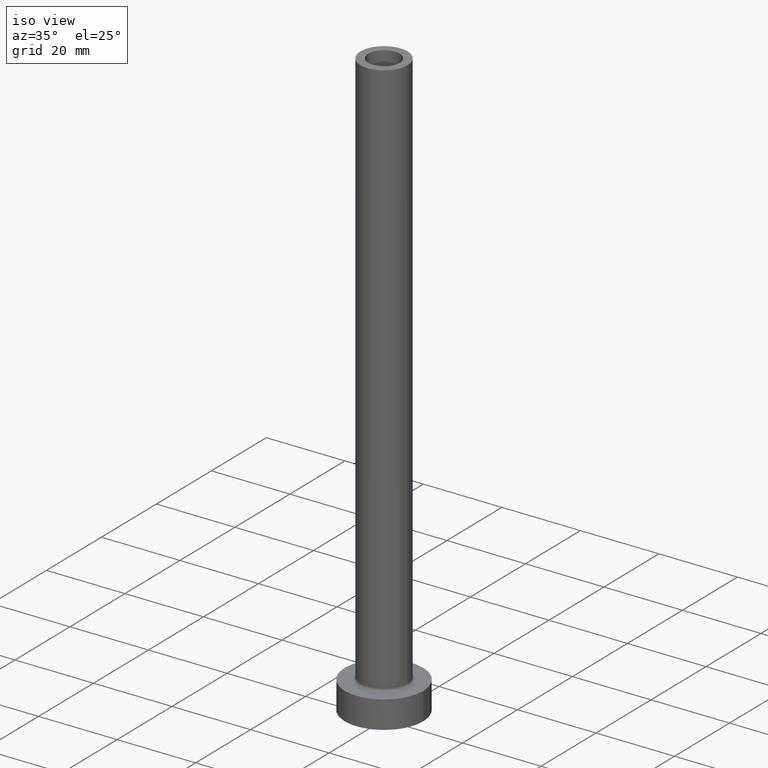
[diagram: clean part render]
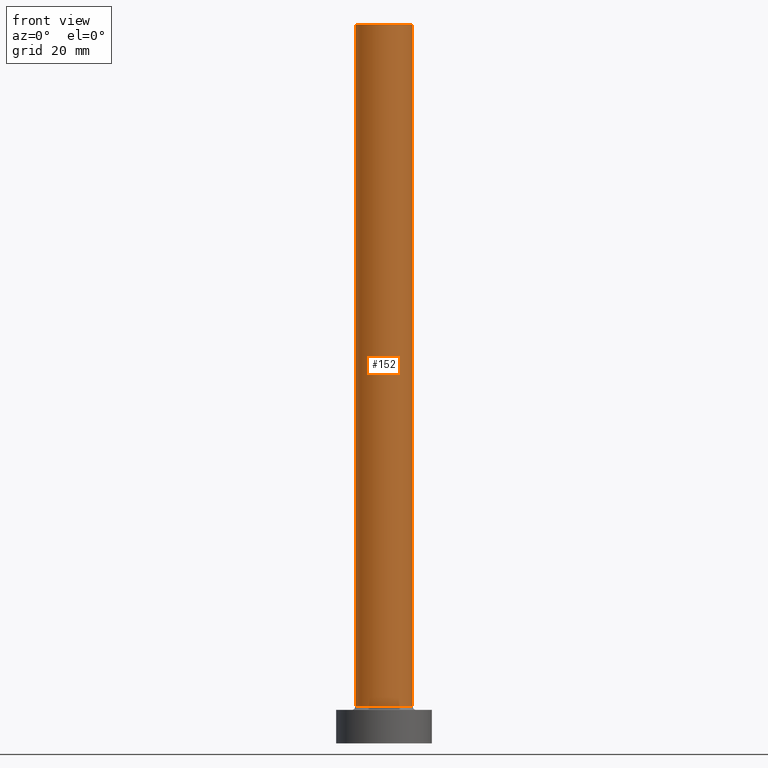
[diagram: tour spotlight — one face highlighted and labeled with its STEP entity id]
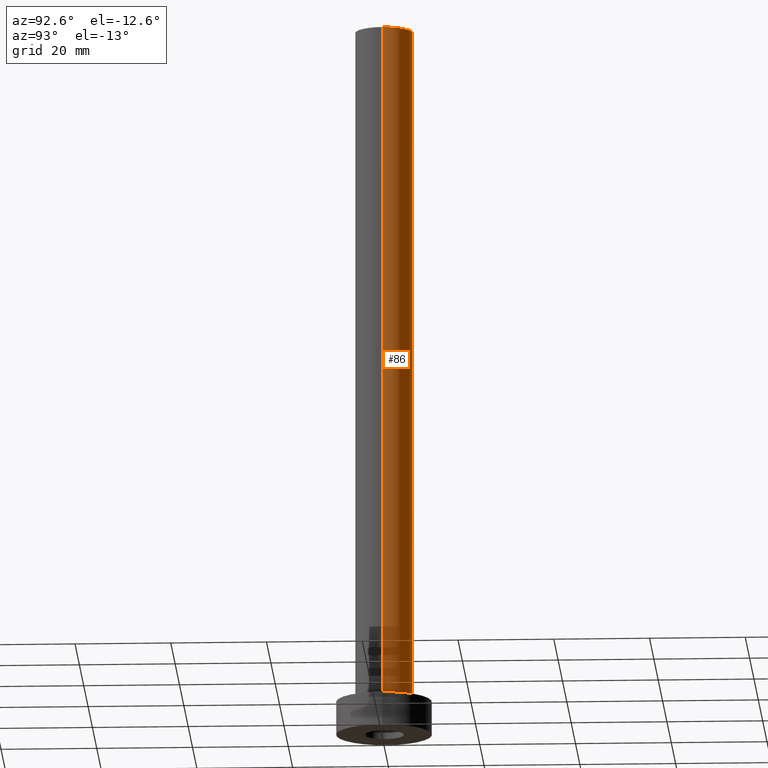
[diagram: tour spotlight — one face highlighted and labeled with its STEP entity id]
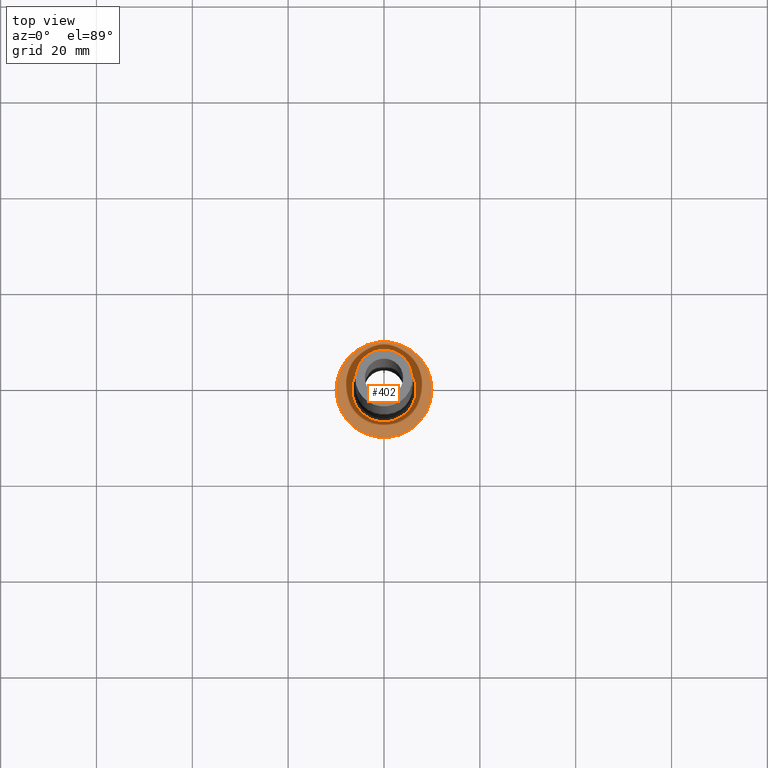
[diagram: tour spotlight — one face highlighted and labeled with its STEP entity id]
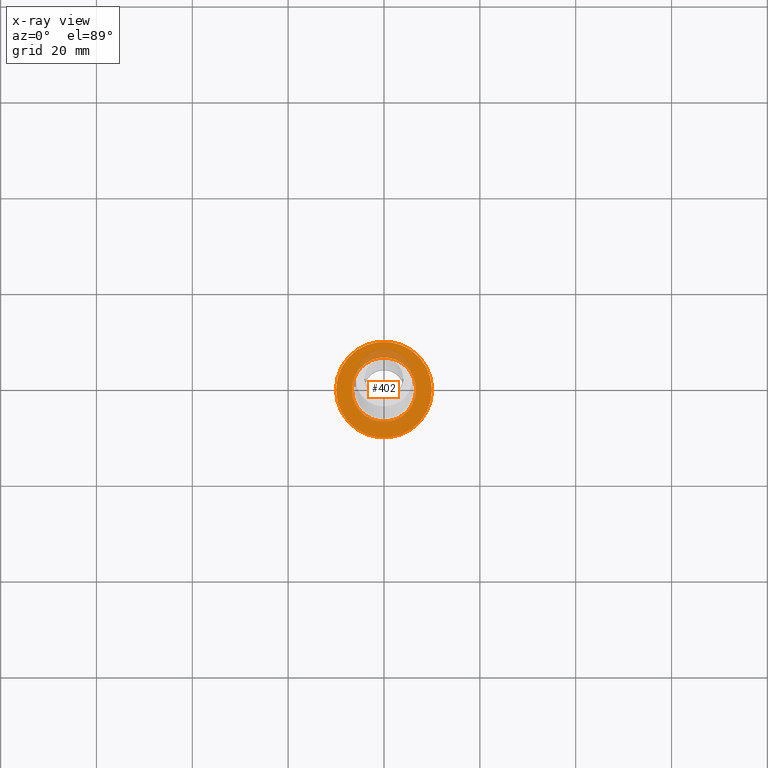
[diagram: x-ray of the same camera — body ghosted, this tour face saturated]
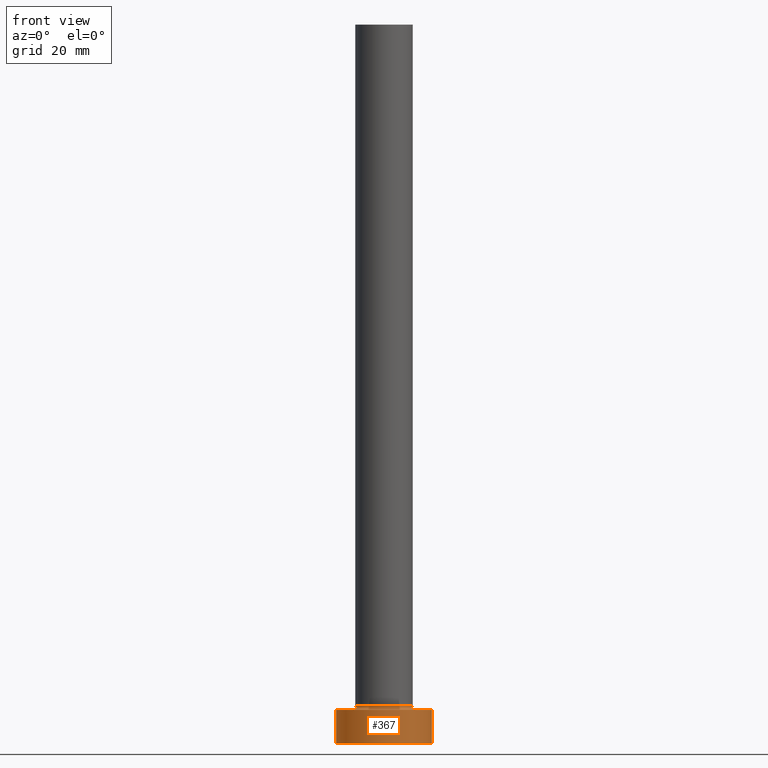
[diagram: tour spotlight — one face highlighted and labeled with its STEP entity id]
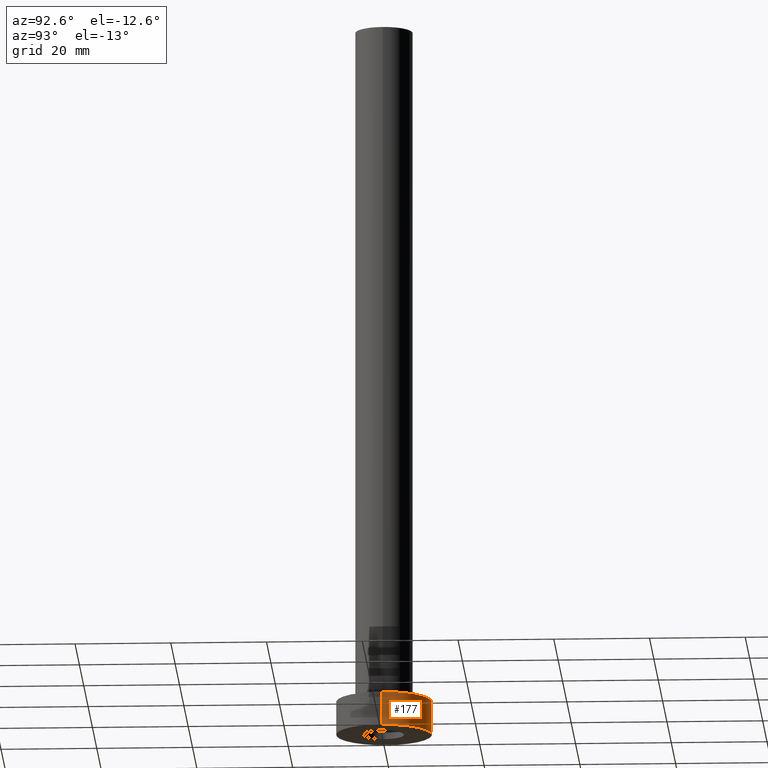
[diagram: tour spotlight — one face highlighted and labeled with its STEP entity id]
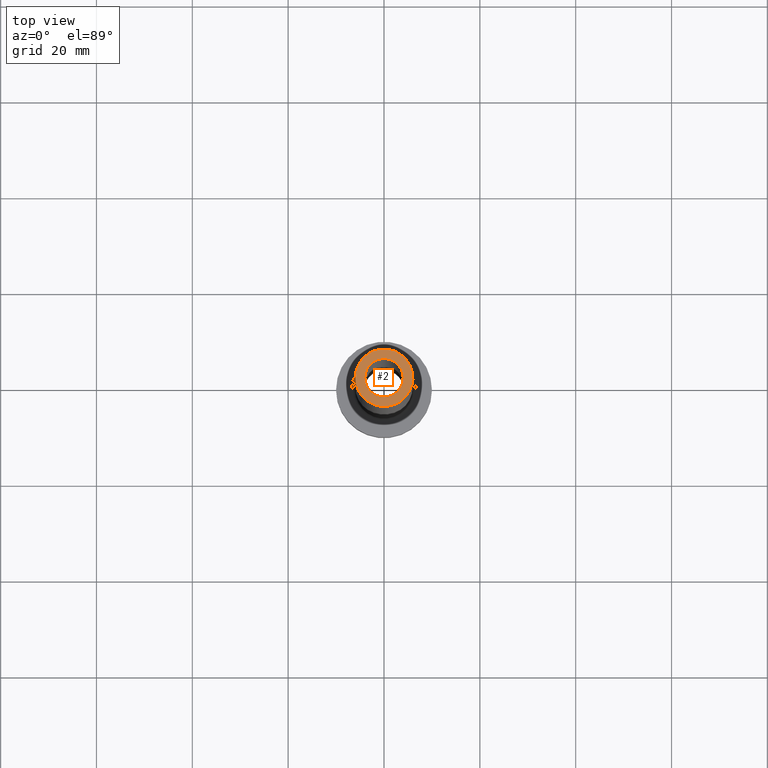
[diagram: tour spotlight — one face highlighted and labeled with its STEP entity id]
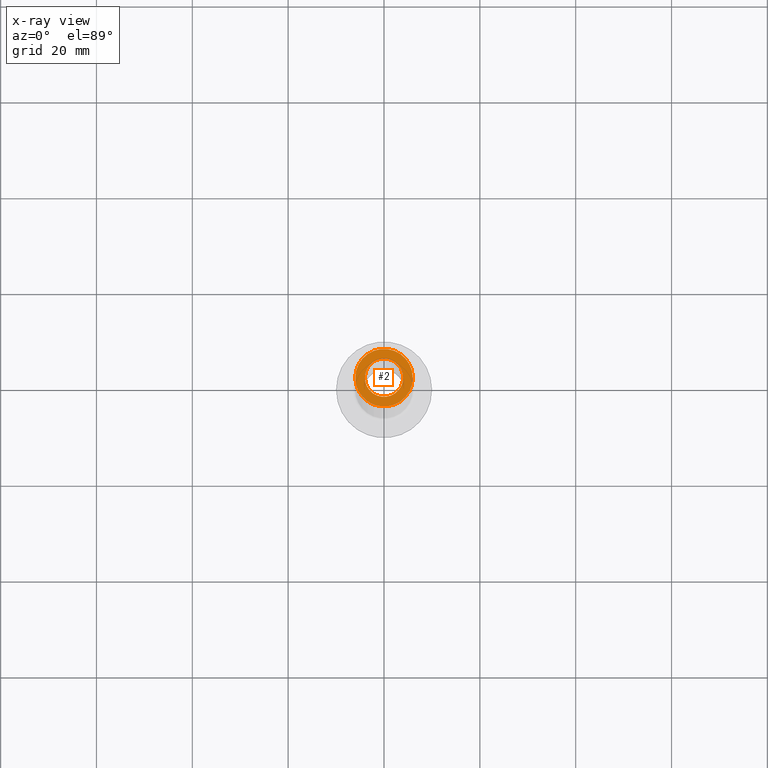
[diagram: x-ray of the same camera — body ghosted, this tour face saturated]
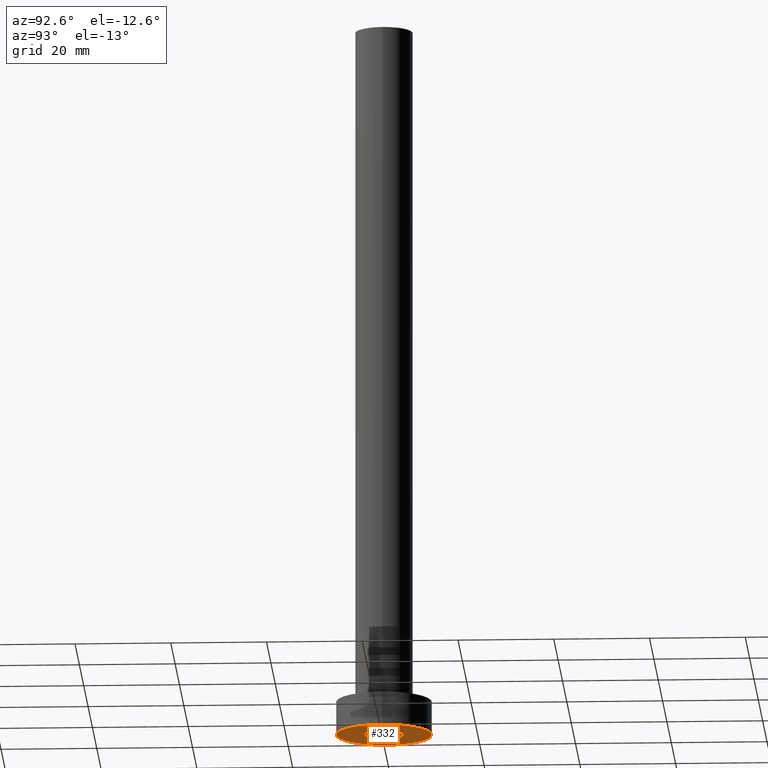
[diagram: tour spotlight — one face highlighted and labeled with its STEP entity id]
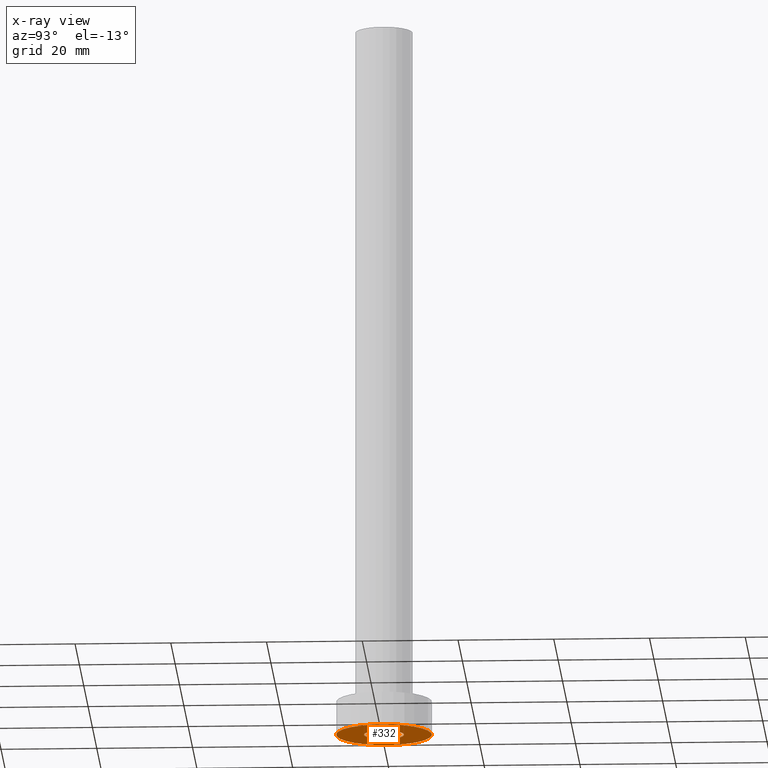
[diagram: x-ray of the same camera — body ghosted, this tour face saturated]
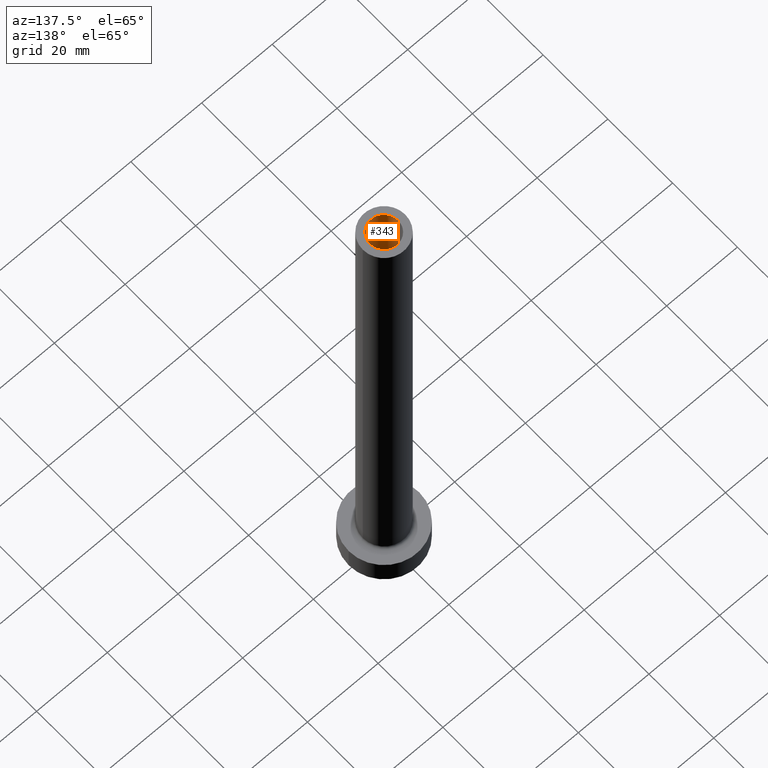
[diagram: tour spotlight — one face highlighted and labeled with its STEP entity id]
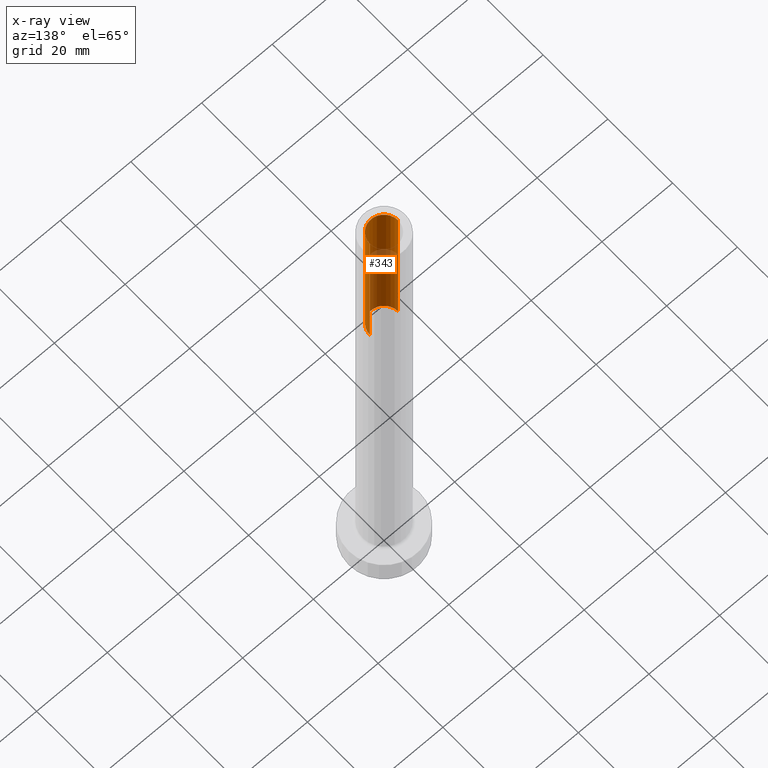
[diagram: x-ray of the same camera — body ghosted, this tour face saturated]
A machine part: a face-by-face anatomy tour. The part has 14 B-rep faces; the first image is the clean iso view, then the 8 largest visible faces are spotlighted one at a time (largest first), each with its STEP entity span.

Face 1 — front view, entity #152. In plain terms, the highlighted cylindrical surface (edge-blend (fillet) strip) has radius 6 mm, axis along (-0, -0, -1).
Definition (entity closure, byte-faithful):
#5 = DIRECTION ( 'NONE',  ( -0.000000000000000000, -0.000000000000000000, -1.000000000000000000 ) ) ;
#10 = EDGE_CURVE ( 'NONE', #386, #135, #185, .T. ) ;
#36 = AXIS2_PLACEMENT_3D ( 'NONE', #305, #99, #56 ) ;
#41 = AXIS2_PLACEMENT_3D ( 'NONE', #348, #201, #414 ) ;
#51 = CIRCLE ( 'NONE', #195, 6.000000000000000888 ) ;
#56 = DIRECTION ( 'NONE',  ( -1.000000000000000000, 0.000000000000000000, 0.000000000000000000 ) ) ;
#66 = DIRECTION ( 'NONE',  ( 0.000000000000000000, 0.000000000000000000, 1.000000000000000000 ) ) ;
#83 = VERTEX_POINT ( 'NONE', #149 ) ;
#96 = LINE ( 'NONE', #320, #293 ) ;
#99 = DIRECTION ( 'NONE',  ( -0.000000000000000000, -0.000000000000000000, -1.000000000000000000 ) ) ;
#100 = ORIENTED_EDGE ( 'NONE', *, *, #249, .T. ) ;
#102 = VERTEX_POINT ( 'NONE', #232 ) ;
#135 = VERTEX_POINT ( 'NONE', #193 ) ;
#149 = CARTESIAN_POINT ( 'NONE',  ( -6.000000000000000888, 0.000000000000000000, 150.0000000000000000 ) ) ;
#152 = ADVANCED_FACE ( 'NONE', ( #266 ), #159, .T. ) ;
#159 = CYLINDRICAL_SURFACE ( 'NONE', #36, 6.000000000000000888 ) ;
#170 = ORIENTED_EDGE ( 'NONE', *, *, #242, .F. ) ;
#171 = DIRECTION ( 'NONE',  ( -0.000000000000000000, -0.000000000000000000, -1.000000000000000000 ) ) ;
#181 = EDGE_LOOP ( 'NONE', ( #264, #170, #100, #458 ) ) ;
#185 = LINE ( 'NONE', #436, #281 ) ;
#193 = CARTESIAN_POINT ( 'NONE',  ( 6.000000000000000888, 7.347880794884120722E-16, 7.700000000000012612 ) ) ;
#195 = AXIS2_PLACEMENT_3D ( 'NONE', #387, #66, #380 ) ;
#201 = DIRECTION ( 'NONE',  ( 0.000000000000000000, 0.000000000000000000, 1.000000000000000000 ) ) ;
#232 = CARTESIAN_POINT ( 'NONE',  ( -6.000000000000000888, 0.000000000000000000, 7.700000000000012612 ) ) ;
#241 = EDGE_CURVE ( 'NONE', #102, #135, #51, .T. ) ;
#242 = EDGE_CURVE ( 'NONE', #83, #386, #318, .T. ) ;
#249 = EDGE_CURVE ( 'NONE', #83, #102, #96, .T. ) ;
#264 = ORIENTED_EDGE ( 'NONE', *, *, #10, .F. ) ;
#266 = FACE_OUTER_BOUND ( 'NONE', #181, .T. ) ;
#281 = VECTOR ( 'NONE', #5, 1000.000000000000000 ) ;
#293 = VECTOR ( 'NONE', #171, 1000.000000000000000 ) ;
#305 = CARTESIAN_POINT ( 'NONE',  ( 0.000000000000000000, 0.000000000000000000, 150.0000000000000000 ) ) ;
#318 = CIRCLE ( 'NONE', #41, 6.000000000000000888 ) ;
#320 = CARTESIAN_POINT ( 'NONE',  ( -6.000000000000000888, 0.000000000000000000, 150.0000000000000000 ) ) ;
#348 = CARTESIAN_POINT ( 'NONE',  ( 0.000000000000000000, 0.000000000000000000, 150.0000000000000000 ) ) ;
#361 = CARTESIAN_POINT ( 'NONE',  ( 6.000000000000000888, 7.347880794884120722E-16, 150.0000000000000000 ) ) ;
#380 = DIRECTION ( 'NONE',  ( 1.000000000000000000, 0.000000000000000000, 0.000000000000000000 ) ) ;
#386 = VERTEX_POINT ( 'NONE', #361 ) ;
#387 = CARTESIAN_POINT ( 'NONE',  ( 0.000000000000000000, 0.000000000000000000, 7.700000000000012612 ) ) ;
#414 = DIRECTION ( 'NONE',  ( 1.000000000000000000, 0.000000000000000000, 0.000000000000000000 ) ) ;
#436 = CARTESIAN_POINT ( 'NONE',  ( 6.000000000000000888, 7.347880794884120722E-16, 150.0000000000000000 ) ) ;
#458 = ORIENTED_EDGE ( 'NONE', *, *, #241, .T. ) ;

Face 2 — auxiliary view, entity #86. In plain terms, the highlighted cylindrical surface (edge-blend (fillet) strip) has radius 6 mm, axis along (-0, -0, -1).
Definition (entity closure, byte-faithful):
#1 = CARTESIAN_POINT ( 'NONE',  ( 0.000000000000000000, 0.000000000000000000, 150.0000000000000000 ) ) ;
#5 = DIRECTION ( 'NONE',  ( -0.000000000000000000, -0.000000000000000000, -1.000000000000000000 ) ) ;
#10 = EDGE_CURVE ( 'NONE', #386, #135, #185, .T. ) ;
#39 = DIRECTION ( 'NONE',  ( 1.000000000000000000, 0.000000000000000000, 0.000000000000000000 ) ) ;
#59 = DIRECTION ( 'NONE',  ( 1.000000000000000000, 0.000000000000000000, 0.000000000000000000 ) ) ;
#62 = CIRCLE ( 'NONE', #97, 6.000000000000000888 ) ;
#77 = DIRECTION ( 'NONE',  ( -0.000000000000000000, -0.000000000000000000, -1.000000000000000000 ) ) ;
#83 = VERTEX_POINT ( 'NONE', #149 ) ;
#86 = ADVANCED_FACE ( 'NONE', ( #221 ), #122, .T. ) ;
#88 = ORIENTED_EDGE ( 'NONE', *, *, #249, .F. ) ;
#91 = DIRECTION ( 'NONE',  ( 0.000000000000000000, 0.000000000000000000, 1.000000000000000000 ) ) ;
#96 = LINE ( 'NONE', #320, #293 ) ;
#97 = AXIS2_PLACEMENT_3D ( 'NONE', #411, #91, #59 ) ;
#102 = VERTEX_POINT ( 'NONE', #232 ) ;
#122 = CYLINDRICAL_SURFACE ( 'NONE', #392, 6.000000000000000888 ) ;
#135 = VERTEX_POINT ( 'NONE', #193 ) ;
#149 = CARTESIAN_POINT ( 'NONE',  ( -6.000000000000000888, 0.000000000000000000, 150.0000000000000000 ) ) ;
#171 = DIRECTION ( 'NONE',  ( -0.000000000000000000, -0.000000000000000000, -1.000000000000000000 ) ) ;
#185 = LINE ( 'NONE', #436, #281 ) ;
#193 = CARTESIAN_POINT ( 'NONE',  ( 6.000000000000000888, 7.347880794884120722E-16, 7.700000000000012612 ) ) ;
#199 = EDGE_LOOP ( 'NONE', ( #296, #412, #291, #88 ) ) ;
#213 = CIRCLE ( 'NONE', #460, 6.000000000000000888 ) ;
#221 = FACE_OUTER_BOUND ( 'NONE', #199, .T. ) ;
#232 = CARTESIAN_POINT ( 'NONE',  ( -6.000000000000000888, 0.000000000000000000, 7.700000000000012612 ) ) ;
#249 = EDGE_CURVE ( 'NONE', #83, #102, #96, .T. ) ;
#260 = EDGE_CURVE ( 'NONE', #135, #102, #62, .T. ) ;
#281 = VECTOR ( 'NONE', #5, 1000.000000000000000 ) ;
#291 = ORIENTED_EDGE ( 'NONE', *, *, #260, .T. ) ;
#293 = VECTOR ( 'NONE', #171, 1000.000000000000000 ) ;
#296 = ORIENTED_EDGE ( 'NONE', *, *, #461, .F. ) ;
#320 = CARTESIAN_POINT ( 'NONE',  ( -6.000000000000000888, 0.000000000000000000, 150.0000000000000000 ) ) ;
#334 = CARTESIAN_POINT ( 'NONE',  ( 0.000000000000000000, 0.000000000000000000, 150.0000000000000000 ) ) ;
#361 = CARTESIAN_POINT ( 'NONE',  ( 6.000000000000000888, 7.347880794884120722E-16, 150.0000000000000000 ) ) ;
#366 = DIRECTION ( 'NONE',  ( -1.000000000000000000, 0.000000000000000000, 0.000000000000000000 ) ) ;
#386 = VERTEX_POINT ( 'NONE', #361 ) ;
#392 = AXIS2_PLACEMENT_3D ( 'NONE', #334, #77, #366 ) ;
#411 = CARTESIAN_POINT ( 'NONE',  ( 0.000000000000000000, 0.000000000000000000, 7.700000000000012612 ) ) ;
#412 = ORIENTED_EDGE ( 'NONE', *, *, #10, .T. ) ;
#430 = DIRECTION ( 'NONE',  ( 0.000000000000000000, 0.000000000000000000, 1.000000000000000000 ) ) ;
#436 = CARTESIAN_POINT ( 'NONE',  ( 6.000000000000000888, 7.347880794884120722E-16, 150.0000000000000000 ) ) ;
#460 = AXIS2_PLACEMENT_3D ( 'NONE', #1, #430, #39 ) ;
#461 = EDGE_CURVE ( 'NONE', #386, #83, #213, .T. ) ;

Face 3 — top view, entity #402. An x-ray twin of the same camera follows (body ghosted, this face saturated) — the face is partly hidden behind the body. In plain terms, the highlighted planar face has unit normal (0, 0, 1).
Definition (entity closure, byte-faithful):
#11 = DIRECTION ( 'NONE',  ( 1.000000000000000000, 0.000000000000000000, 0.000000000000000000 ) ) ;
#14 = CIRCLE ( 'NONE', #263, 10.00000000000000000 ) ;
#17 = ORIENTED_EDGE ( 'NONE', *, *, #220, .T. ) ;
#24 = AXIS2_PLACEMENT_3D ( 'NONE', #395, #48, #262 ) ;
#31 = AXIS2_PLACEMENT_3D ( 'NONE', #187, #364, #113 ) ;
#46 = EDGE_LOOP ( 'NONE', ( #210, #80 ) ) ;
#48 = DIRECTION ( 'NONE',  ( 0.000000000000000000, 0.000000000000000000, 1.000000000000000000 ) ) ;
#49 = VERTEX_POINT ( 'NONE', #340 ) ;
#73 = DIRECTION ( 'NONE',  ( 0.000000000000000000, 0.000000000000000000, 1.000000000000000000 ) ) ;
#80 = ORIENTED_EDGE ( 'NONE', *, *, #106, .T. ) ;
#87 = CARTESIAN_POINT ( 'NONE',  ( -6.700000000000001066, 8.205133554287267548E-16, 7.000000000000006217 ) ) ;
#103 = EDGE_CURVE ( 'NONE', #345, #175, #328, .T. ) ;
#106 = EDGE_CURVE ( 'NONE', #175, #345, #447, .T. ) ;
#107 = FACE_OUTER_BOUND ( 'NONE', #437, .T. ) ;
#113 = DIRECTION ( 'NONE',  ( 1.000000000000000000, 0.000000000000000000, 0.000000000000000000 ) ) ;
#115 = EDGE_CURVE ( 'NONE', #374, #49, #398, .T. ) ;
#160 = DIRECTION ( 'NONE',  ( -0.000000000000000000, -0.000000000000000000, -1.000000000000000000 ) ) ;
#173 = DIRECTION ( 'NONE',  ( 1.000000000000000000, 0.000000000000000000, 0.000000000000000000 ) ) ;
#175 = VERTEX_POINT ( 'NONE', #87 ) ;
#180 = DIRECTION ( 'NONE',  ( 1.000000000000000000, 0.000000000000000000, -0.000000000000000000 ) ) ;
#187 = CARTESIAN_POINT ( 'NONE',  ( 0.000000000000000000, 0.000000000000000000, 7.000000000000000000 ) ) ;
#210 = ORIENTED_EDGE ( 'NONE', *, *, #103, .T. ) ;
#220 = EDGE_CURVE ( 'NONE', #49, #374, #14, .T. ) ;
#251 = CARTESIAN_POINT ( 'NONE',  ( 0.000000000000000000, 0.000000000000000000, 7.000000000000000000 ) ) ;
#254 = PLANE ( 'NONE',  #384 ) ;
#262 = DIRECTION ( 'NONE',  ( 1.000000000000000000, 0.000000000000000000, 0.000000000000000000 ) ) ;
#263 = AXIS2_PLACEMENT_3D ( 'NONE', #416, #446, #173 ) ;
#270 = ORIENTED_EDGE ( 'NONE', *, *, #115, .T. ) ;
#295 = CARTESIAN_POINT ( 'NONE',  ( 0.000000000000000000, 0.000000000000000000, 7.000000000000000000 ) ) ;
#321 = CARTESIAN_POINT ( 'NONE',  ( 6.700000000000001066, 0.000000000000000000, 7.000000000000006217 ) ) ;
#328 = CIRCLE ( 'NONE', #381, 6.700000000000001066 ) ;
#340 = CARTESIAN_POINT ( 'NONE',  ( -10.00000000000000000, 0.000000000000000000, 7.000000000000000000 ) ) ;
#345 = VERTEX_POINT ( 'NONE', #321 ) ;
#364 = DIRECTION ( 'NONE',  ( -0.000000000000000000, -0.000000000000000000, -1.000000000000000000 ) ) ;
#374 = VERTEX_POINT ( 'NONE', #391 ) ;
#381 = AXIS2_PLACEMENT_3D ( 'NONE', #295, #160, #11 ) ;
#384 = AXIS2_PLACEMENT_3D ( 'NONE', #251, #73, #180 ) ;
#391 = CARTESIAN_POINT ( 'NONE',  ( 10.00000000000000000, 1.224646799147353256E-15, 7.000000000000000000 ) ) ;
#395 = CARTESIAN_POINT ( 'NONE',  ( 0.000000000000000000, 0.000000000000000000, 7.000000000000000000 ) ) ;
#398 = CIRCLE ( 'NONE', #24, 10.00000000000000000 ) ;
#402 = ADVANCED_FACE ( 'NONE', ( #423, #107 ), #254, .T. ) ;
#416 = CARTESIAN_POINT ( 'NONE',  ( 0.000000000000000000, 0.000000000000000000, 7.000000000000000000 ) ) ;
#423 = FACE_BOUND ( 'NONE', #46, .T. ) ;
#437 = EDGE_LOOP ( 'NONE', ( #17, #270 ) ) ;
#446 = DIRECTION ( 'NONE',  ( 0.000000000000000000, 0.000000000000000000, 1.000000000000000000 ) ) ;
#447 = CIRCLE ( 'NONE', #31, 6.700000000000001066 ) ;

Face 4 — front view, entity #367. In plain terms, the highlighted cylindrical surface (partial cylindrical patch) has radius 10 mm, axis along (-0, -0, -1).
Definition (entity closure, byte-faithful):
#8 = CARTESIAN_POINT ( 'NONE',  ( -10.00000000000000000, 0.000000000000000000, 0.000000000000000000 ) ) ;
#12 = VERTEX_POINT ( 'NONE', #16 ) ;
#14 = CIRCLE ( 'NONE', #263, 10.00000000000000000 ) ;
#16 = CARTESIAN_POINT ( 'NONE',  ( 10.00000000000000000, 1.224646799147353256E-15, 0.000000000000000000 ) ) ;
#21 = LINE ( 'NONE', #131, #148 ) ;
#26 = EDGE_CURVE ( 'NONE', #374, #12, #75, .T. ) ;
#40 = VERTEX_POINT ( 'NONE', #8 ) ;
#49 = VERTEX_POINT ( 'NONE', #340 ) ;
#64 = DIRECTION ( 'NONE',  ( -0.000000000000000000, -0.000000000000000000, -1.000000000000000000 ) ) ;
#75 = LINE ( 'NONE', #228, #365 ) ;
#82 = EDGE_LOOP ( 'NONE', ( #108, #154, #410, #202 ) ) ;
#104 = DIRECTION ( 'NONE',  ( -1.000000000000000000, 0.000000000000000000, 0.000000000000000000 ) ) ;
#108 = ORIENTED_EDGE ( 'NONE', *, *, #26, .F. ) ;
#131 = CARTESIAN_POINT ( 'NONE',  ( -10.00000000000000000, 0.000000000000000000, 7.000000000000000000 ) ) ;
#140 = DIRECTION ( 'NONE',  ( -0.000000000000000000, -0.000000000000000000, -1.000000000000000000 ) ) ;
#142 = EDGE_CURVE ( 'NONE', #40, #12, #207, .T. ) ;
#148 = VECTOR ( 'NONE', #64, 1000.000000000000000 ) ;
#154 = ORIENTED_EDGE ( 'NONE', *, *, #220, .F. ) ;
#173 = DIRECTION ( 'NONE',  ( 1.000000000000000000, 0.000000000000000000, 0.000000000000000000 ) ) ;
#184 = CARTESIAN_POINT ( 'NONE',  ( 0.000000000000000000, 0.000000000000000000, 7.000000000000000000 ) ) ;
#202 = ORIENTED_EDGE ( 'NONE', *, *, #142, .T. ) ;
#207 = CIRCLE ( 'NONE', #459, 10.00000000000000000 ) ;
#220 = EDGE_CURVE ( 'NONE', #49, #374, #14, .T. ) ;
#225 = CARTESIAN_POINT ( 'NONE',  ( 0.000000000000000000, 0.000000000000000000, 0.000000000000000000 ) ) ;
#228 = CARTESIAN_POINT ( 'NONE',  ( 10.00000000000000000, 1.224646799147353256E-15, 7.000000000000000000 ) ) ;
#247 = AXIS2_PLACEMENT_3D ( 'NONE', #184, #140, #104 ) ;
#263 = AXIS2_PLACEMENT_3D ( 'NONE', #416, #446, #173 ) ;
#289 = FACE_OUTER_BOUND ( 'NONE', #82, .T. ) ;
#307 = DIRECTION ( 'NONE',  ( 0.000000000000000000, 0.000000000000000000, 1.000000000000000000 ) ) ;
#323 = EDGE_CURVE ( 'NONE', #49, #40, #21, .T. ) ;
#340 = CARTESIAN_POINT ( 'NONE',  ( -10.00000000000000000, 0.000000000000000000, 7.000000000000000000 ) ) ;
#365 = VECTOR ( 'NONE', #394, 1000.000000000000000 ) ;
#367 = ADVANCED_FACE ( 'NONE', ( #289 ), #388, .T. ) ;
#369 = DIRECTION ( 'NONE',  ( 1.000000000000000000, 0.000000000000000000, 0.000000000000000000 ) ) ;
#374 = VERTEX_POINT ( 'NONE', #391 ) ;
#388 = CYLINDRICAL_SURFACE ( 'NONE', #247, 10.00000000000000000 ) ;
#391 = CARTESIAN_POINT ( 'NONE',  ( 10.00000000000000000, 1.224646799147353256E-15, 7.000000000000000000 ) ) ;
#394 = DIRECTION ( 'NONE',  ( -0.000000000000000000, -0.000000000000000000, -1.000000000000000000 ) ) ;
#410 = ORIENTED_EDGE ( 'NONE', *, *, #323, .T. ) ;
#416 = CARTESIAN_POINT ( 'NONE',  ( 0.000000000000000000, 0.000000000000000000, 7.000000000000000000 ) ) ;
#446 = DIRECTION ( 'NONE',  ( 0.000000000000000000, 0.000000000000000000, 1.000000000000000000 ) ) ;
#459 = AXIS2_PLACEMENT_3D ( 'NONE', #225, #307, #369 ) ;

Face 5 — auxiliary view, entity #177. In plain terms, the highlighted cylindrical surface (partial cylindrical patch) has radius 10 mm, axis along (-0, -0, -1).
Definition (entity closure, byte-faithful):
#8 = CARTESIAN_POINT ( 'NONE',  ( -10.00000000000000000, 0.000000000000000000, 0.000000000000000000 ) ) ;
#12 = VERTEX_POINT ( 'NONE', #16 ) ;
#16 = CARTESIAN_POINT ( 'NONE',  ( 10.00000000000000000, 1.224646799147353256E-15, 0.000000000000000000 ) ) ;
#21 = LINE ( 'NONE', #131, #148 ) ;
#24 = AXIS2_PLACEMENT_3D ( 'NONE', #395, #48, #262 ) ;
#26 = EDGE_CURVE ( 'NONE', #374, #12, #75, .T. ) ;
#40 = VERTEX_POINT ( 'NONE', #8 ) ;
#48 = DIRECTION ( 'NONE',  ( 0.000000000000000000, 0.000000000000000000, 1.000000000000000000 ) ) ;
#49 = VERTEX_POINT ( 'NONE', #340 ) ;
#64 = DIRECTION ( 'NONE',  ( -0.000000000000000000, -0.000000000000000000, -1.000000000000000000 ) ) ;
#75 = LINE ( 'NONE', #228, #365 ) ;
#90 = EDGE_CURVE ( 'NONE', #12, #40, #350, .T. ) ;
#94 = DIRECTION ( 'NONE',  ( -0.000000000000000000, -0.000000000000000000, -1.000000000000000000 ) ) ;
#115 = EDGE_CURVE ( 'NONE', #374, #49, #398, .T. ) ;
#117 = EDGE_LOOP ( 'NONE', ( #223, #139, #267, #156 ) ) ;
#129 = AXIS2_PLACEMENT_3D ( 'NONE', #250, #94, #283 ) ;
#131 = CARTESIAN_POINT ( 'NONE',  ( -10.00000000000000000, 0.000000000000000000, 7.000000000000000000 ) ) ;
#137 = FACE_OUTER_BOUND ( 'NONE', #117, .T. ) ;
#139 = ORIENTED_EDGE ( 'NONE', *, *, #26, .T. ) ;
#148 = VECTOR ( 'NONE', #64, 1000.000000000000000 ) ;
#156 = ORIENTED_EDGE ( 'NONE', *, *, #323, .F. ) ;
#157 = AXIS2_PLACEMENT_3D ( 'NONE', #330, #372, #269 ) ;
#177 = ADVANCED_FACE ( 'NONE', ( #137 ), #450, .T. ) ;
#223 = ORIENTED_EDGE ( 'NONE', *, *, #115, .F. ) ;
#228 = CARTESIAN_POINT ( 'NONE',  ( 10.00000000000000000, 1.224646799147353256E-15, 7.000000000000000000 ) ) ;
#250 = CARTESIAN_POINT ( 'NONE',  ( 0.000000000000000000, 0.000000000000000000, 7.000000000000000000 ) ) ;
#262 = DIRECTION ( 'NONE',  ( 1.000000000000000000, 0.000000000000000000, 0.000000000000000000 ) ) ;
#267 = ORIENTED_EDGE ( 'NONE', *, *, #90, .T. ) ;
#269 = DIRECTION ( 'NONE',  ( 1.000000000000000000, 0.000000000000000000, 0.000000000000000000 ) ) ;
#283 = DIRECTION ( 'NONE',  ( -1.000000000000000000, 0.000000000000000000, 0.000000000000000000 ) ) ;
#323 = EDGE_CURVE ( 'NONE', #49, #40, #21, .T. ) ;
#330 = CARTESIAN_POINT ( 'NONE',  ( 0.000000000000000000, 0.000000000000000000, 0.000000000000000000 ) ) ;
#340 = CARTESIAN_POINT ( 'NONE',  ( -10.00000000000000000, 0.000000000000000000, 7.000000000000000000 ) ) ;
#350 = CIRCLE ( 'NONE', #157, 10.00000000000000000 ) ;
#365 = VECTOR ( 'NONE', #394, 1000.000000000000000 ) ;
#372 = DIRECTION ( 'NONE',  ( 0.000000000000000000, 0.000000000000000000, 1.000000000000000000 ) ) ;
#374 = VERTEX_POINT ( 'NONE', #391 ) ;
#391 = CARTESIAN_POINT ( 'NONE',  ( 10.00000000000000000, 1.224646799147353256E-15, 7.000000000000000000 ) ) ;
#394 = DIRECTION ( 'NONE',  ( -0.000000000000000000, -0.000000000000000000, -1.000000000000000000 ) ) ;
#395 = CARTESIAN_POINT ( 'NONE',  ( 0.000000000000000000, 0.000000000000000000, 7.000000000000000000 ) ) ;
#398 = CIRCLE ( 'NONE', #24, 10.00000000000000000 ) ;
#450 = CYLINDRICAL_SURFACE ( 'NONE', #129, 10.00000000000000000 ) ;

Face 6 — top view, entity #2. An x-ray twin of the same camera follows (body ghosted, this face saturated) — the face is partly hidden behind the body. In plain terms, the highlighted planar face has unit normal (0, 0, 1).
Definition (entity closure, byte-faithful):
#1 = CARTESIAN_POINT ( 'NONE',  ( 0.000000000000000000, 0.000000000000000000, 150.0000000000000000 ) ) ;
#2 = ADVANCED_FACE ( 'NONE', ( #198, #190 ), #298, .T. ) ;
#22 = ORIENTED_EDGE ( 'NONE', *, *, #242, .T. ) ;
#25 = ORIENTED_EDGE ( 'NONE', *, *, #277, .F. ) ;
#28 = ORIENTED_EDGE ( 'NONE', *, *, #300, .F. ) ;
#39 = DIRECTION ( 'NONE',  ( 1.000000000000000000, 0.000000000000000000, 0.000000000000000000 ) ) ;
#41 = AXIS2_PLACEMENT_3D ( 'NONE', #348, #201, #414 ) ;
#69 = CIRCLE ( 'NONE', #165, 4.000000000000000000 ) ;
#74 = DIRECTION ( 'NONE',  ( 0.000000000000000000, 0.000000000000000000, 1.000000000000000000 ) ) ;
#78 = EDGE_LOOP ( 'NONE', ( #22, #401 ) ) ;
#83 = VERTEX_POINT ( 'NONE', #149 ) ;
#85 = CIRCLE ( 'NONE', #274, 4.000000000000000000 ) ;
#119 = DIRECTION ( 'NONE',  ( 1.000000000000000000, 0.000000000000000000, -0.000000000000000000 ) ) ;
#126 = EDGE_LOOP ( 'NONE', ( #28, #25 ) ) ;
#146 = CARTESIAN_POINT ( 'NONE',  ( 4.000000000000000000, 4.898587196589411843E-16, 150.0000000000000000 ) ) ;
#149 = CARTESIAN_POINT ( 'NONE',  ( -6.000000000000000888, 0.000000000000000000, 150.0000000000000000 ) ) ;
#165 = AXIS2_PLACEMENT_3D ( 'NONE', #237, #378, #312 ) ;
#172 = AXIS2_PLACEMENT_3D ( 'NONE', #399, #74, #119 ) ;
#190 = FACE_OUTER_BOUND ( 'NONE', #78, .T. ) ;
#198 = FACE_BOUND ( 'NONE', #126, .T. ) ;
#201 = DIRECTION ( 'NONE',  ( 0.000000000000000000, 0.000000000000000000, 1.000000000000000000 ) ) ;
#213 = CIRCLE ( 'NONE', #460, 6.000000000000000888 ) ;
#218 = CARTESIAN_POINT ( 'NONE',  ( -4.000000000000000000, 0.000000000000000000, 150.0000000000000000 ) ) ;
#237 = CARTESIAN_POINT ( 'NONE',  ( 0.000000000000000000, 0.000000000000000000, 150.0000000000000000 ) ) ;
#242 = EDGE_CURVE ( 'NONE', #83, #386, #318, .T. ) ;
#244 = DIRECTION ( 'NONE',  ( 1.000000000000000000, 0.000000000000000000, 0.000000000000000000 ) ) ;
#274 = AXIS2_PLACEMENT_3D ( 'NONE', #454, #351, #244 ) ;
#277 = EDGE_CURVE ( 'NONE', #355, #405, #85, .T. ) ;
#298 = PLANE ( 'NONE',  #172 ) ;
#300 = EDGE_CURVE ( 'NONE', #405, #355, #69, .T. ) ;
#312 = DIRECTION ( 'NONE',  ( 1.000000000000000000, 0.000000000000000000, 0.000000000000000000 ) ) ;
#318 = CIRCLE ( 'NONE', #41, 6.000000000000000888 ) ;
#348 = CARTESIAN_POINT ( 'NONE',  ( 0.000000000000000000, 0.000000000000000000, 150.0000000000000000 ) ) ;
#351 = DIRECTION ( 'NONE',  ( 0.000000000000000000, 0.000000000000000000, 1.000000000000000000 ) ) ;
#355 = VERTEX_POINT ( 'NONE', #146 ) ;
#361 = CARTESIAN_POINT ( 'NONE',  ( 6.000000000000000888, 7.347880794884120722E-16, 150.0000000000000000 ) ) ;
#378 = DIRECTION ( 'NONE',  ( 0.000000000000000000, 0.000000000000000000, 1.000000000000000000 ) ) ;
#386 = VERTEX_POINT ( 'NONE', #361 ) ;
#399 = CARTESIAN_POINT ( 'NONE',  ( 0.000000000000000000, 0.000000000000000000, 150.0000000000000000 ) ) ;
#401 = ORIENTED_EDGE ( 'NONE', *, *, #461, .T. ) ;
#405 = VERTEX_POINT ( 'NONE', #218 ) ;
#414 = DIRECTION ( 'NONE',  ( 1.000000000000000000, 0.000000000000000000, 0.000000000000000000 ) ) ;
#430 = DIRECTION ( 'NONE',  ( 0.000000000000000000, 0.000000000000000000, 1.000000000000000000 ) ) ;
#454 = CARTESIAN_POINT ( 'NONE',  ( 0.000000000000000000, 0.000000000000000000, 150.0000000000000000 ) ) ;
#460 = AXIS2_PLACEMENT_3D ( 'NONE', #1, #430, #39 ) ;
#461 = EDGE_CURVE ( 'NONE', #386, #83, #213, .T. ) ;

Face 7 — auxiliary view, entity #332. An x-ray twin of the same camera follows (body ghosted, this face saturated) — the face is partly hidden behind the body. In plain terms, the highlighted planar face has unit normal (0, 0, 1).
Definition (entity closure, byte-faithful):
#8 = CARTESIAN_POINT ( 'NONE',  ( -10.00000000000000000, 0.000000000000000000, 0.000000000000000000 ) ) ;
#12 = VERTEX_POINT ( 'NONE', #16 ) ;
#16 = CARTESIAN_POINT ( 'NONE',  ( 10.00000000000000000, 1.224646799147353256E-15, 0.000000000000000000 ) ) ;
#23 = DIRECTION ( 'NONE',  ( 1.000000000000000000, 0.000000000000000000, -0.000000000000000000 ) ) ;
#27 = FACE_BOUND ( 'NONE', #54, .T. ) ;
#29 = CARTESIAN_POINT ( 'NONE',  ( 4.150000000000000355, 5.082284216461515156E-16, 0.000000000000000000 ) ) ;
#37 = CIRCLE ( 'NONE', #174, 4.150000000000000355 ) ;
#40 = VERTEX_POINT ( 'NONE', #8 ) ;
#54 = EDGE_LOOP ( 'NONE', ( #442, #60 ) ) ;
#60 = ORIENTED_EDGE ( 'NONE', *, *, #435, .F. ) ;
#90 = EDGE_CURVE ( 'NONE', #12, #40, #350, .T. ) ;
#142 = EDGE_CURVE ( 'NONE', #40, #12, #207, .T. ) ;
#144 = DIRECTION ( 'NONE',  ( -0.000000000000000000, -0.000000000000000000, -1.000000000000000000 ) ) ;
#145 = DIRECTION ( 'NONE',  ( -0.000000000000000000, -0.000000000000000000, -1.000000000000000000 ) ) ;
#150 = ORIENTED_EDGE ( 'NONE', *, *, #142, .F. ) ;
#157 = AXIS2_PLACEMENT_3D ( 'NONE', #330, #372, #269 ) ;
#174 = AXIS2_PLACEMENT_3D ( 'NONE', #178, #144, #421 ) ;
#176 = DIRECTION ( 'NONE',  ( 1.000000000000000000, 0.000000000000000000, 0.000000000000000000 ) ) ;
#178 = CARTESIAN_POINT ( 'NONE',  ( 0.000000000000000000, 0.000000000000000000, 0.000000000000000000 ) ) ;
#183 = CARTESIAN_POINT ( 'NONE',  ( 0.000000000000000000, 0.000000000000000000, 0.000000000000000000 ) ) ;
#204 = DIRECTION ( 'NONE',  ( 0.000000000000000000, 0.000000000000000000, 1.000000000000000000 ) ) ;
#207 = CIRCLE ( 'NONE', #459, 10.00000000000000000 ) ;
#211 = CARTESIAN_POINT ( 'NONE',  ( -4.150000000000000355, 0.000000000000000000, 0.000000000000000000 ) ) ;
#225 = CARTESIAN_POINT ( 'NONE',  ( 0.000000000000000000, 0.000000000000000000, 0.000000000000000000 ) ) ;
#226 = VERTEX_POINT ( 'NONE', #211 ) ;
#229 = VERTEX_POINT ( 'NONE', #29 ) ;
#234 = AXIS2_PLACEMENT_3D ( 'NONE', #183, #145, #176 ) ;
#238 = EDGE_LOOP ( 'NONE', ( #150, #329 ) ) ;
#240 = PLANE ( 'NONE',  #255 ) ;
#255 = AXIS2_PLACEMENT_3D ( 'NONE', #314, #204, #23 ) ;
#269 = DIRECTION ( 'NONE',  ( 1.000000000000000000, 0.000000000000000000, 0.000000000000000000 ) ) ;
#276 = FACE_OUTER_BOUND ( 'NONE', #238, .T. ) ;
#304 = CIRCLE ( 'NONE', #234, 4.150000000000000355 ) ;
#307 = DIRECTION ( 'NONE',  ( 0.000000000000000000, 0.000000000000000000, 1.000000000000000000 ) ) ;
#314 = CARTESIAN_POINT ( 'NONE',  ( 0.000000000000000000, 0.000000000000000000, 0.000000000000000000 ) ) ;
#329 = ORIENTED_EDGE ( 'NONE', *, *, #90, .F. ) ;
#330 = CARTESIAN_POINT ( 'NONE',  ( 0.000000000000000000, 0.000000000000000000, 0.000000000000000000 ) ) ;
#332 = ADVANCED_FACE ( 'NONE', ( #27, #276 ), #240, .F. ) ;
#350 = CIRCLE ( 'NONE', #157, 10.00000000000000000 ) ;
#369 = DIRECTION ( 'NONE',  ( 1.000000000000000000, 0.000000000000000000, 0.000000000000000000 ) ) ;
#372 = DIRECTION ( 'NONE',  ( 0.000000000000000000, 0.000000000000000000, 1.000000000000000000 ) ) ;
#421 = DIRECTION ( 'NONE',  ( 1.000000000000000000, 0.000000000000000000, 0.000000000000000000 ) ) ;
#422 = EDGE_CURVE ( 'NONE', #226, #229, #37, .T. ) ;
#435 = EDGE_CURVE ( 'NONE', #229, #226, #304, .T. ) ;
#442 = ORIENTED_EDGE ( 'NONE', *, *, #422, .F. ) ;
#459 = AXIS2_PLACEMENT_3D ( 'NONE', #225, #307, #369 ) ;

Face 8 — auxiliary view, entity #343. An x-ray twin of the same camera follows (body ghosted, this face saturated) — the face is partly hidden behind the body. In plain terms, the highlighted cylindrical surface (edge-blend (fillet) strip) has radius 4 mm, axis along (0, 0, -1).
Definition (entity closure, byte-faithful):
#34 = DIRECTION ( 'NONE',  ( 0.000000000000000000, 0.000000000000000000, -1.000000000000000000 ) ) ;
#35 = LINE ( 'NONE', #287, #375 ) ;
#43 = DIRECTION ( 'NONE',  ( 0.000000000000000000, 0.000000000000000000, 1.000000000000000000 ) ) ;
#58 = EDGE_CURVE ( 'NONE', #189, #303, #431, .T. ) ;
#69 = CIRCLE ( 'NONE', #165, 4.000000000000000000 ) ;
#92 = ORIENTED_EDGE ( 'NONE', *, *, #389, .T. ) ;
#111 = EDGE_CURVE ( 'NONE', #405, #189, #261, .T. ) ;
#116 = DIRECTION ( 'NONE',  ( 1.000000000000000000, 0.000000000000000000, 0.000000000000000000 ) ) ;
#133 = FACE_OUTER_BOUND ( 'NONE', #420, .T. ) ;
#146 = CARTESIAN_POINT ( 'NONE',  ( 4.000000000000000000, 4.898587196589411843E-16, 150.0000000000000000 ) ) ;
#153 = DIRECTION ( 'NONE',  ( 0.000000000000000000, 0.000000000000000000, -1.000000000000000000 ) ) ;
#155 = CARTESIAN_POINT ( 'NONE',  ( -4.000000000000000000, 0.000000000000000000, 150.0000000000000000 ) ) ;
#165 = AXIS2_PLACEMENT_3D ( 'NONE', #237, #378, #312 ) ;
#168 = ORIENTED_EDGE ( 'NONE', *, *, #300, .T. ) ;
#186 = AXIS2_PLACEMENT_3D ( 'NONE', #219, #43, #116 ) ;
#189 = VERTEX_POINT ( 'NONE', #309 ) ;
#209 = CARTESIAN_POINT ( 'NONE',  ( 0.000000000000000000, 0.000000000000000000, 150.0000000000000000 ) ) ;
#218 = CARTESIAN_POINT ( 'NONE',  ( -4.000000000000000000, 0.000000000000000000, 150.0000000000000000 ) ) ;
#219 = CARTESIAN_POINT ( 'NONE',  ( 0.000000000000000000, 0.000000000000000000, 105.0000000000000000 ) ) ;
#237 = CARTESIAN_POINT ( 'NONE',  ( 0.000000000000000000, 0.000000000000000000, 150.0000000000000000 ) ) ;
#252 = ORIENTED_EDGE ( 'NONE', *, *, #111, .F. ) ;
#261 = LINE ( 'NONE', #155, #356 ) ;
#272 = CARTESIAN_POINT ( 'NONE',  ( 4.000000000000000000, 4.898587196589411843E-16, 105.0000000000000000 ) ) ;
#287 = CARTESIAN_POINT ( 'NONE',  ( 4.000000000000000000, 4.898587196589411843E-16, 150.0000000000000000 ) ) ;
#300 = EDGE_CURVE ( 'NONE', #405, #355, #69, .T. ) ;
#303 = VERTEX_POINT ( 'NONE', #272 ) ;
#309 = CARTESIAN_POINT ( 'NONE',  ( -4.000000000000000000, 0.000000000000000000, 105.0000000000000000 ) ) ;
#312 = DIRECTION ( 'NONE',  ( 1.000000000000000000, 0.000000000000000000, 0.000000000000000000 ) ) ;
#316 = DIRECTION ( 'NONE',  ( 0.000000000000000000, 0.000000000000000000, -1.000000000000000000 ) ) ;
#343 = ADVANCED_FACE ( 'NONE', ( #133 ), #385, .F. ) ;
#355 = VERTEX_POINT ( 'NONE', #146 ) ;
#356 = VECTOR ( 'NONE', #153, 1000.000000000000000 ) ;
#375 = VECTOR ( 'NONE', #34, 1000.000000000000000 ) ;
#378 = DIRECTION ( 'NONE',  ( 0.000000000000000000, 0.000000000000000000, 1.000000000000000000 ) ) ;
#385 = CYLINDRICAL_SURFACE ( 'NONE', #425, 4.000000000000000000 ) ;
#389 = EDGE_CURVE ( 'NONE', #355, #303, #35, .T. ) ;
#405 = VERTEX_POINT ( 'NONE', #218 ) ;
#420 = EDGE_LOOP ( 'NONE', ( #168, #92, #440, #252 ) ) ;
#425 = AXIS2_PLACEMENT_3D ( 'NONE', #209, #316, #451 ) ;
#431 = CIRCLE ( 'NONE', #186, 4.000000000000000000 ) ;
#440 = ORIENTED_EDGE ( 'NONE', *, *, #58, .F. ) ;
#451 = DIRECTION ( 'NONE',  ( -1.000000000000000000, 0.000000000000000000, 0.000000000000000000 ) ) ;